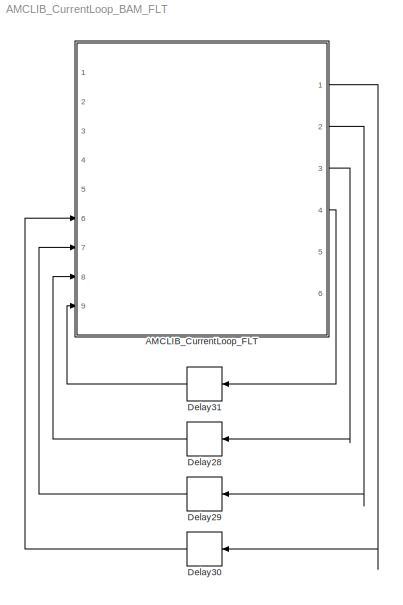
MODEL AMCLIB_CurrentLoop_BAM_FLT
KIND model
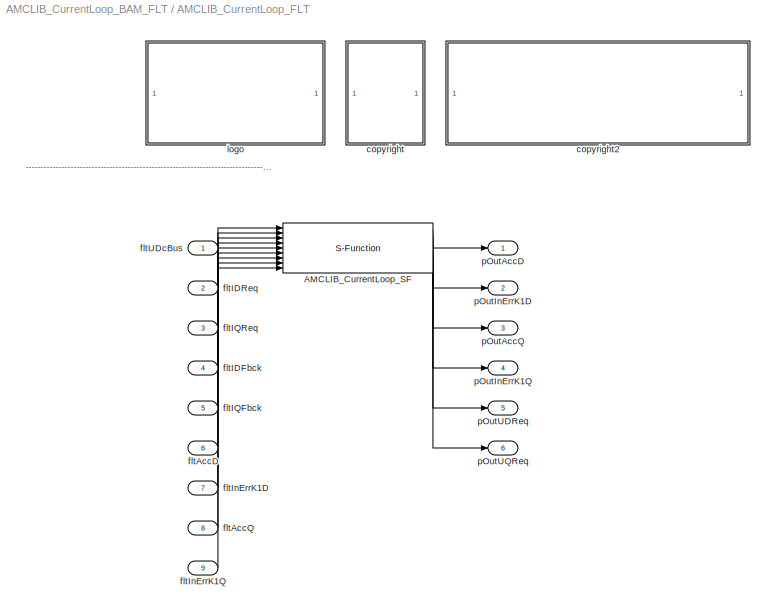
BLOCK [SubSystem] AMCLIB_CurrentLoop_FLT
  Ports = [9, 6]
  RequestExecContextInheritance = off
  SID = 1
BLOCK [S-Function] AMCLIB_CurrentLoop_FLT/AMCLIB_CurrentLoop_SF
  EnableBusSupport = off
  FunctionName = AMCLIB_CurrentLoop_SF_FLT
  Parameters = fltCC1scD,fltCC2scD,fltCC1scQ,fltCC2scQ
  Ports = [9, 6]
  SID = 4
BLOCK [SubSystem] AMCLIB_CurrentLoop_FLT/<copyright redacted>
  Ports = []
  RequestExecContextInheritance = off
  SID = 24
BLOCK [SubSystem] AMCLIB_CurrentLoop_FLT/copyright2
  Ports = []
  RequestExecContextInheritance = off
  SID = 27
BLOCK [Inport] AMCLIB_CurrentLoop_FLT/fltAccD
  IconDisplay = Port number
  Port = 6
  SID = 10
BLOCK [Inport] AMCLIB_CurrentLoop_FLT/fltAccQ
  IconDisplay = Port number
  Port = 8
  SID = 12
BLOCK [Inport] AMCLIB_CurrentLoop_FLT/fltIDFbck
  IconDisplay = Port number
  Port = 4
  SID = 8
BLOCK [Inport] AMCLIB_CurrentLoop_FLT/fltIDReq
  IconDisplay = Port number
  Port = 2
  SID = 6
BLOCK [Inport] AMCLIB_CurrentLoop_FLT/fltIQFbck
  IconDisplay = Port number
  Port = 5
  SID = 9
BLOCK [Inport] AMCLIB_CurrentLoop_FLT/fltIQReq
  IconDisplay = Port number
  Port = 3
  SID = 7
BLOCK [Inport] AMCLIB_CurrentLoop_FLT/fltInErrK1D
  IconDisplay = Port number
  Port = 7
  SID = 11
BLOCK [Inport] AMCLIB_CurrentLoop_FLT/fltInErrK1Q
  IconDisplay = Port number
  Port = 9
  SID = 13
BLOCK [Inport] AMCLIB_CurrentLoop_FLT/fltUDcBus
  IconDisplay = Port number
  SID = 5
BLOCK [SubSystem] AMCLIB_CurrentLoop_FLT/logo
  Ports = []
  RequestExecContextInheritance = off
  SID = 20
BLOCK [Outport] AMCLIB_CurrentLoop_FLT/pOutAccD
  IconDisplay = Port number
  SID = 14
BLOCK [Outport] AMCLIB_CurrentLoop_FLT/pOutAccQ
  IconDisplay = Port number
  Port = 3
  SID = 16
BLOCK [Outport] AMCLIB_CurrentLoop_FLT/pOutInErrK1D
  IconDisplay = Port number
  Port = 2
  SID = 15
BLOCK [Outport] AMCLIB_CurrentLoop_FLT/pOutInErrK1Q
  IconDisplay = Port number
  Port = 4
  SID = 17
BLOCK [Outport] AMCLIB_CurrentLoop_FLT/pOutUDReq
  IconDisplay = Port number
  Port = 5
  SID = 18
BLOCK [Outport] AMCLIB_CurrentLoop_FLT/pOutUQReq
  IconDisplay = Port number
  Port = 6
  SID = 19
BLOCK [Delay] Delay28
  DelayLength = 1
  InitialCondition = 0
  InputPortMap = u0
  Ports = [1, 1]
  SID = 30
BLOCK [Delay] Delay29
  DelayLength = 1
  InitialCondition = 0
  InputPortMap = u0
  Ports = [1, 1]
  SID = 31
BLOCK [Delay] Delay30
  DelayLength = 1
  InitialCondition = 0
  InputPortMap = u0
  Ports = [1, 1]
  SID = 32
BLOCK [Delay] Delay31
  DelayLength = 1
  InitialCondition = 0
  InputPortMap = u0
  Ports = [1, 1]
  SID = 33
ANNOTATION AMCLIB_CurrentLoop_FLT: ---------------------------------------------------------------------------------------------------------------------------------------------------------------------------------------------------
LINE AMCLIB_CurrentLoop_FLT/AMCLIB_CurrentLoop_SF:1 -> AMCLIB_CurrentLoop_FLT/pOutAccD:1
LINE AMCLIB_CurrentLoop_FLT/AMCLIB_CurrentLoop_SF:2 -> AMCLIB_CurrentLoop_FLT/pOutInErrK1D:1
LINE AMCLIB_CurrentLoop_FLT/AMCLIB_CurrentLoop_SF:3 -> AMCLIB_CurrentLoop_FLT/pOutAccQ:1
LINE AMCLIB_CurrentLoop_FLT/AMCLIB_CurrentLoop_SF:4 -> AMCLIB_CurrentLoop_FLT/pOutInErrK1Q:1
LINE AMCLIB_CurrentLoop_FLT/AMCLIB_CurrentLoop_SF:5 -> AMCLIB_CurrentLoop_FLT/pOutUDReq:1
LINE AMCLIB_CurrentLoop_FLT/AMCLIB_CurrentLoop_SF:6 -> AMCLIB_CurrentLoop_FLT/pOutUQReq:1
LINE AMCLIB_CurrentLoop_FLT/fltAccD:1 -> AMCLIB_CurrentLoop_FLT/AMCLIB_CurrentLoop_SF:6
LINE AMCLIB_CurrentLoop_FLT/fltAccQ:1 -> AMCLIB_CurrentLoop_FLT/AMCLIB_CurrentLoop_SF:8
LINE AMCLIB_CurrentLoop_FLT/fltIDFbck:1 -> AMCLIB_CurrentLoop_FLT/AMCLIB_CurrentLoop_SF:4
LINE AMCLIB_CurrentLoop_FLT/fltIDReq:1 -> AMCLIB_CurrentLoop_FLT/AMCLIB_CurrentLoop_SF:2
LINE AMCLIB_CurrentLoop_FLT/fltIQFbck:1 -> AMCLIB_CurrentLoop_FLT/AMCLIB_CurrentLoop_SF:5
LINE AMCLIB_CurrentLoop_FLT/fltIQReq:1 -> AMCLIB_CurrentLoop_FLT/AMCLIB_CurrentLoop_SF:3
LINE AMCLIB_CurrentLoop_FLT/fltInErrK1D:1 -> AMCLIB_CurrentLoop_FLT/AMCLIB_CurrentLoop_SF:7
LINE AMCLIB_CurrentLoop_FLT/fltInErrK1Q:1 -> AMCLIB_CurrentLoop_FLT/AMCLIB_CurrentLoop_SF:9
LINE AMCLIB_CurrentLoop_FLT/fltUDcBus:1 -> AMCLIB_CurrentLoop_FLT/AMCLIB_CurrentLoop_SF:1
LINE AMCLIB_CurrentLoop_FLT:1 -> Delay30:1
LINE AMCLIB_CurrentLoop_FLT:2 -> Delay29:1
LINE AMCLIB_CurrentLoop_FLT:3 -> Delay28:1
LINE AMCLIB_CurrentLoop_FLT:4 -> Delay31:1
LINE Delay28:1 -> AMCLIB_CurrentLoop_FLT:8
LINE Delay29:1 -> AMCLIB_CurrentLoop_FLT:7
LINE Delay30:1 -> AMCLIB_CurrentLoop_FLT:6
LINE Delay31:1 -> AMCLIB_CurrentLoop_FLT:9
